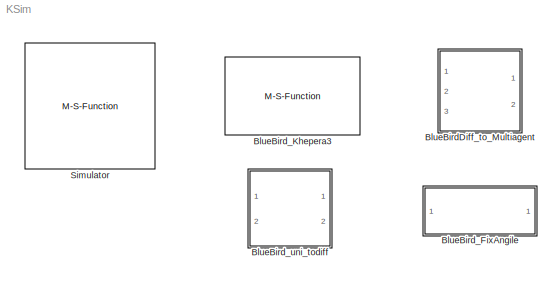
MODEL KSim
KIND library
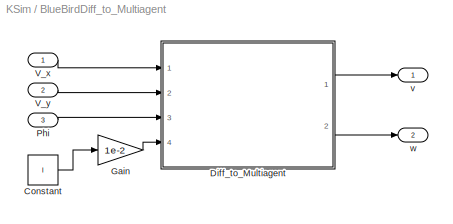
BLOCK [SubSystem] BlueBirdDiff_to_Multiagent
  AncestorBlock = simiam/BlueBird_uni_todiff
  Ports = [3, 2]
  RequestExecContextInheritance = off
  SID = 32
BLOCK [Constant] BlueBirdDiff_to_Multiagent/Constant
  SID = 32:35
  Value = l
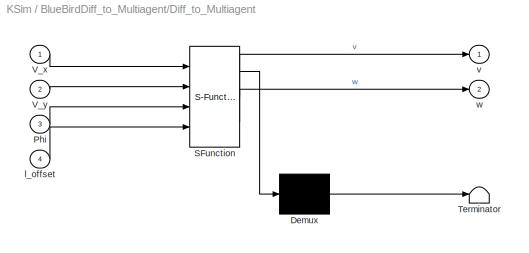
BLOCK [SubSystem] BlueBirdDiff_to_Multiagent/Diff_to_Multiagent
  ErrorFcn = Stateflow.Translate.translate
  PermitHierarchicalResolution = ExplicitOnly
  Ports = [4, 2]
  RequestExecContextInheritance = off
  SFBlockType = MATLAB Function
  SID = 32:34
  TreatAsAtomicUnit = on
BLOCK [Demux] BlueBirdDiff_to_Multiagent/Diff_to_Multiagent/ Demux 
  Outputs = 1
  Ports = [1, 1]
  SID = 32:34::26
BLOCK [S-Function] BlueBirdDiff_to_Multiagent/Diff_to_Multiagent/ SFunction 
  EnableBusSupport = off
  FunctionName = sf_sfun
  PortCounts = [4 3]
  Ports = [4, 3]
  SID = 32:34::25
  Tag = Stateflow S-Function KSim 2
BLOCK [Terminator] BlueBirdDiff_to_Multiagent/Diff_to_Multiagent/ Terminator 
  SID = 32:34::27
BLOCK [Inport] BlueBirdDiff_to_Multiagent/Diff_to_Multiagent/Phi
  IconDisplay = Port number
  Port = 3
  SID = 32:34::22
BLOCK [Inport] BlueBirdDiff_to_Multiagent/Diff_to_Multiagent/V_x
  IconDisplay = Port number
  SID = 32:34::1
BLOCK [Inport] BlueBirdDiff_to_Multiagent/Diff_to_Multiagent/V_y
  IconDisplay = Port number
  Port = 2
  SID = 32:34::21
BLOCK [Inport] BlueBirdDiff_to_Multiagent/Diff_to_Multiagent/l_offset
  IconDisplay = Port number
  Port = 4
  SID = 32:34::23
BLOCK [Outport] BlueBirdDiff_to_Multiagent/Diff_to_Multiagent/v
  IconDisplay = Port number
  SID = 32:34::5
BLOCK [Outport] BlueBirdDiff_to_Multiagent/Diff_to_Multiagent/w
  IconDisplay = Port number
  Port = 2
  SID = 32:34::24
BLOCK [Gain] BlueBirdDiff_to_Multiagent/Gain
  Gain = 1e-2
  OutDataTypeStr = Inherit: Inherit via internal rule
  ParamDataTypeStr = Inherit: Inherit via internal rule
  SID = 32:36
  SaturateOnIntegerOverflow = off
BLOCK [Inport] BlueBirdDiff_to_Multiagent/Phi
  IconDisplay = Port number
  Port = 3
  SID = 32:32
BLOCK [Inport] BlueBirdDiff_to_Multiagent/V_x
  IconDisplay = Port number
  SID = 32:25
BLOCK [Inport] BlueBirdDiff_to_Multiagent/V_y
  IconDisplay = Port number
  Port = 2
  SID = 32:26
BLOCK [Outport] BlueBirdDiff_to_Multiagent/v
  IconDisplay = Port number
  SID = 32:30
BLOCK [Outport] BlueBirdDiff_to_Multiagent/w
  IconDisplay = Port number
  Port = 2
  SID = 32:31
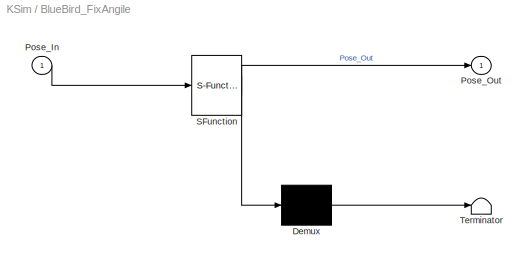
BLOCK [SubSystem] BlueBird_FixAngile
  ErrorFcn = Stateflow.Translate.translate
  PermitHierarchicalResolution = ExplicitOnly
  Ports = [1, 1]
  RequestExecContextInheritance = off
  SFBlockType = MATLAB Function
  SID = 33
  TreatAsAtomicUnit = on
BLOCK [Demux] BlueBird_FixAngile/ Demux 
  Outputs = 1
  Ports = [1, 1]
  SID = 33::19
BLOCK [S-Function] BlueBird_FixAngile/ SFunction 
  EnableBusSupport = on
  FunctionName = sf_sfun
  PortCounts = [1 2]
  Ports = [1, 2]
  SID = 33::18
  Tag = Stateflow S-Function KSim 3
BLOCK [Terminator] BlueBird_FixAngile/ Terminator 
  SID = 33::20
BLOCK [Inport] BlueBird_FixAngile/Pose_In
  IconDisplay = Port number
  SID = 33::22
BLOCK [Outport] BlueBird_FixAngile/Pose_Out
  IconDisplay = Port number
  SID = 33::5
BLOCK [M-S-Function] BlueBird_Khepera3
  AncestorBlock = simiam/Khepera III
  FunctionName = msfun_khepera3_WithPosition
  Parameters = x_0,y_0,theta_0,ShowObservation
  Ports = [2, 4]
  SID = 34
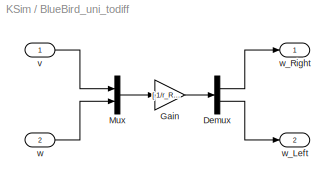
BLOCK [SubSystem] BlueBird_uni_todiff
  Ports = [2, 2]
  RequestExecContextInheritance = off
  SID = 24
BLOCK [Demux] BlueBird_uni_todiff/Demux
  DisplayOption = bar
  Outputs = 2
  Ports = [1, 2]
  SID = 27
BLOCK [Gain] BlueBird_uni_todiff/Gain
  Gain = [ 1/r_R,  b/(2*r_R) ; 1/r_L, -b/(2*r_L)]
  Multiplication = Matrix(K*u)
  OutDataTypeStr = Inherit: Inherit via internal rule
  ParamDataTypeStr = Inherit: Inherit via internal rule
  SID = 28
  SaturateOnIntegerOverflow = off
BLOCK [Mux] BlueBird_uni_todiff/Mux
  DisplayOption = bar
  Inputs = 2
  Ports = [2, 1]
  SID = 29
BLOCK [Inport] BlueBird_uni_todiff/v
  IconDisplay = Port number
  SID = 25
BLOCK [Inport] BlueBird_uni_todiff/w
  IconDisplay = Port number
  Port = 2
  SID = 26
BLOCK [Outport] BlueBird_uni_todiff/w_Left
  IconDisplay = Port number
  Port = 2
  SID = 31
BLOCK [Outport] BlueBird_uni_todiff/w_Right
  IconDisplay = Port number
  SID = 30
BLOCK [M-S-Function] Simulator
  FunctionName = msfun_simiam_ui
  Ports = []
  SID = 1
LINE BlueBirdDiff_to_Multiagent/Constant:1 -> BlueBirdDiff_to_Multiagent/Gain:1
LINE BlueBirdDiff_to_Multiagent/Diff_to_Multiagent/ Demux :1 -> BlueBirdDiff_to_Multiagent/Diff_to_Multiagent/ Terminator :1
LINE BlueBirdDiff_to_Multiagent/Diff_to_Multiagent/ SFunction :1 -> BlueBirdDiff_to_Multiagent/Diff_to_Multiagent/ Demux :1
LINE BlueBirdDiff_to_Multiagent/Diff_to_Multiagent/ SFunction :2 -> BlueBirdDiff_to_Multiagent/Diff_to_Multiagent/v:1
LINE BlueBirdDiff_to_Multiagent/Diff_to_Multiagent/ SFunction :3 -> BlueBirdDiff_to_Multiagent/Diff_to_Multiagent/w:1
LINE BlueBirdDiff_to_Multiagent/Diff_to_Multiagent/Phi:1 -> BlueBirdDiff_to_Multiagent/Diff_to_Multiagent/ SFunction :3
LINE BlueBirdDiff_to_Multiagent/Diff_to_Multiagent/V_x:1 -> BlueBirdDiff_to_Multiagent/Diff_to_Multiagent/ SFunction :1
LINE BlueBirdDiff_to_Multiagent/Diff_to_Multiagent/V_y:1 -> BlueBirdDiff_to_Multiagent/Diff_to_Multiagent/ SFunction :2
LINE BlueBirdDiff_to_Multiagent/Diff_to_Multiagent/l_offset:1 -> BlueBirdDiff_to_Multiagent/Diff_to_Multiagent/ SFunction :4
LINE BlueBirdDiff_to_Multiagent/Diff_to_Multiagent:1 -> BlueBirdDiff_to_Multiagent/v:1
LINE BlueBirdDiff_to_Multiagent/Diff_to_Multiagent:2 -> BlueBirdDiff_to_Multiagent/w:1
LINE BlueBirdDiff_to_Multiagent/Gain:1 -> BlueBirdDiff_to_Multiagent/Diff_to_Multiagent:4
LINE BlueBirdDiff_to_Multiagent/Phi:1 -> BlueBirdDiff_to_Multiagent/Diff_to_Multiagent:3
LINE BlueBirdDiff_to_Multiagent/V_x:1 -> BlueBirdDiff_to_Multiagent/Diff_to_Multiagent:1
LINE BlueBirdDiff_to_Multiagent/V_y:1 -> BlueBirdDiff_to_Multiagent/Diff_to_Multiagent:2
LINE BlueBird_FixAngile/ Demux :1 -> BlueBird_FixAngile/ Terminator :1
LINE BlueBird_FixAngile/ SFunction :1 -> BlueBird_FixAngile/ Demux :1
LINE BlueBird_FixAngile/ SFunction :2 -> BlueBird_FixAngile/Pose_Out:1
LINE BlueBird_FixAngile/Pose_In:1 -> BlueBird_FixAngile/ SFunction :1
LINE BlueBird_uni_todiff/Demux:1 -> BlueBird_uni_todiff/w_Right:1
LINE BlueBird_uni_todiff/Demux:2 -> BlueBird_uni_todiff/w_Left:1
LINE BlueBird_uni_todiff/Gain:1 -> BlueBird_uni_todiff/Demux:1
LINE BlueBird_uni_todiff/Mux:1 -> BlueBird_uni_todiff/Gain:1
LINE BlueBird_uni_todiff/v:1 -> BlueBird_uni_todiff/Mux:1
LINE BlueBird_uni_todiff/w:1 -> BlueBird_uni_todiff/Mux:2
CHART BlueBirdDiff_to_Multiagent/Diff_to_Multiagent states=1 transitions=1
  STATE_LABEL 'eML_blk_kernel()'
CHART BlueBird_FixAngile states=1 transitions=1
  STATE_LABEL 'eML_blk_kernel()'
